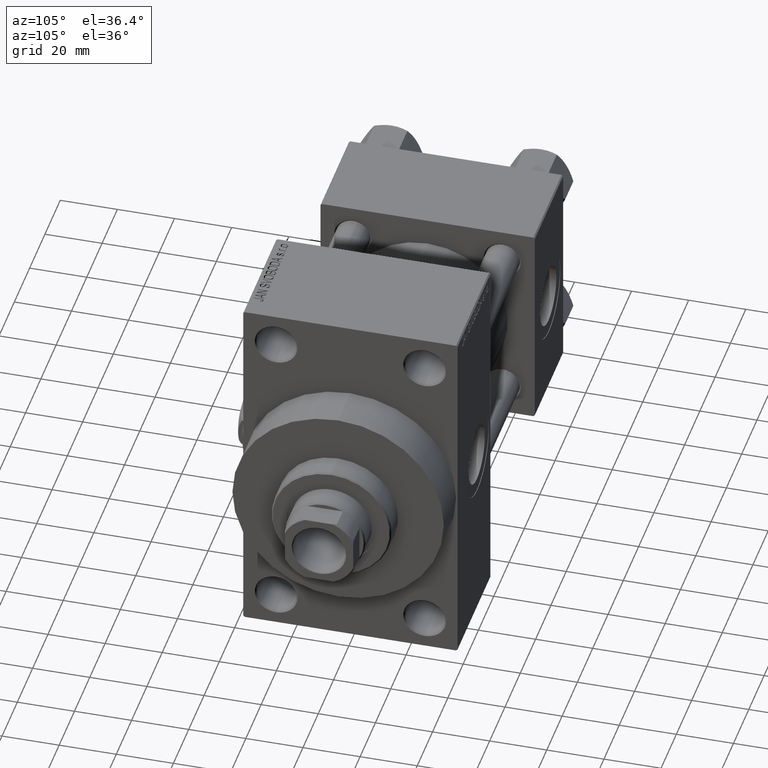
[diagram: clean part render]
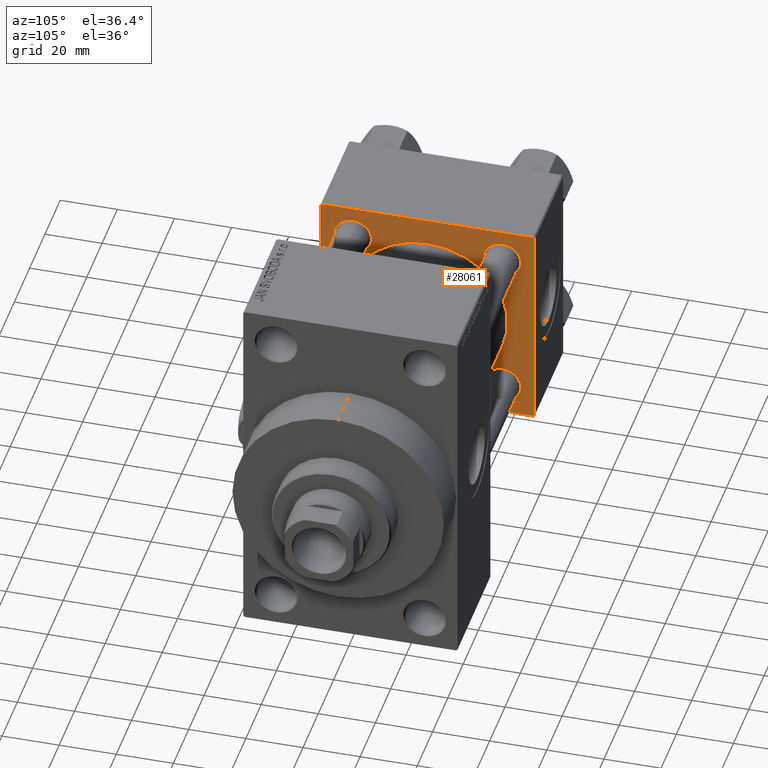
[diagram: same view with one face highlighted and labeled with its STEP entity id]
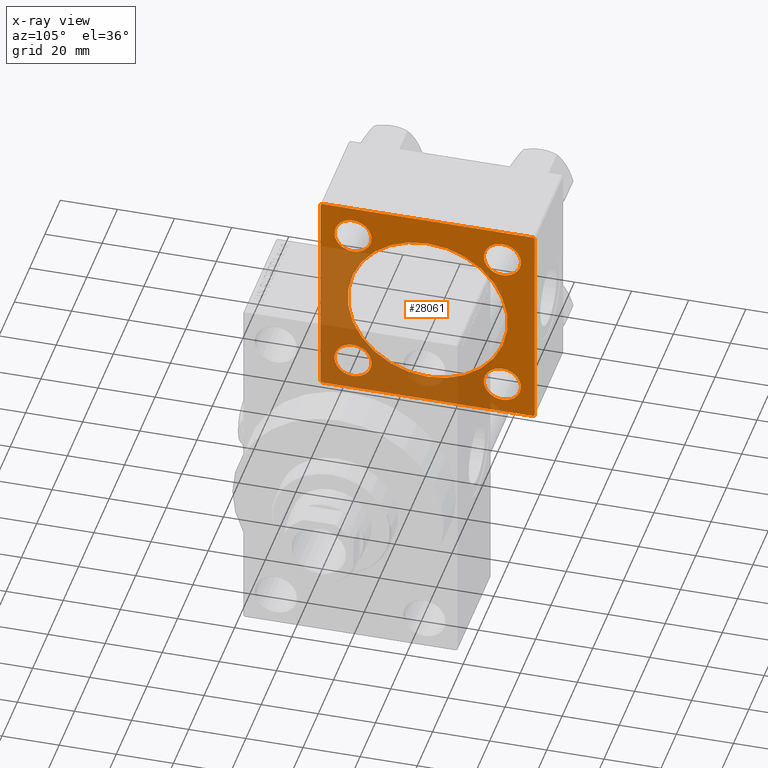
[diagram: x-ray of the same camera — body ghosted, the highlighted face saturated]
A machine part, auxiliary view. The second image highlights one B-rep face of the part: STEP entity #28061.
The next image is the same camera in x-ray: the body ghosted, the highlighted face saturated — about 45% of this face is hidden behind the body in this view.
In plain terms, the highlighted planar face has unit normal (-1, 0, 0).
Its self-contained STEP definition (entity closure, byte-faithful):
#106 = CIRCLE ( 'NONE', #26166, 6.500000000000057732 ) ;
#618 = EDGE_CURVE ( 'NONE', #43766, #48010, #35289, .T. ) ;
#924 = VERTEX_POINT ( 'NONE', #30983 ) ;
#1386 = LINE ( 'NONE', #29055, #27198 ) ;
#1470 = CIRCLE ( 'NONE', #19647, 6.500000000000002665 ) ;
#1662 = CARTESIAN_POINT ( 'NONE',  ( 37.00000000000000000, 26.14999999999999858, 32.65000000000001279 ) ) ;
#1811 = CARTESIAN_POINT ( 'NONE',  ( 37.00000000000000000, 26.14999999999999858, 26.15000000000000213 ) ) ;
#1832 = EDGE_CURVE ( 'NONE', #8495, #31881, #36807, .T. ) ;
#1848 = CARTESIAN_POINT ( 'NONE',  ( 37.00000000000000000, 37.49999999999999289, -36.99999999999998579 ) ) ;
#2081 = CARTESIAN_POINT ( 'NONE',  ( 37.00000000000000000, -37.00000000000002132, -37.50000000000000711 ) ) ;
#2444 = AXIS2_PLACEMENT_3D ( 'NONE', #26447, #38340, #12077 ) ;
#2451 = CARTESIAN_POINT ( 'NONE',  ( 37.00000000000000000, 37.49999999999999289, 37.50000000000000000 ) ) ;
#2662 = EDGE_CURVE ( 'NONE', #12018, #924, #37719, .T. ) ;
#2708 = CARTESIAN_POINT ( 'NONE',  ( 37.00000000000000000, 36.99999999999999289, 37.50000000000000000 ) ) ;
#2746 = CARTESIAN_POINT ( 'NONE',  ( 37.00000000000000000, -26.14999999999999147, 26.15000000000000924 ) ) ;
#2801 = CARTESIAN_POINT ( 'NONE',  ( 37.00000000000000000, -26.14999999999999147, 26.15000000000000924 ) ) ;
#4160 = EDGE_CURVE ( 'NONE', #20701, #21538, #13231, .T. ) ;
#4385 = EDGE_CURVE ( 'NONE', #31881, #26565, #45617, .T. ) ;
#4530 = ORIENTED_EDGE ( 'NONE', *, *, #36973, .F. ) ;
#5412 = CARTESIAN_POINT ( 'NONE',  ( 37.00000000000000000, -2.602085213965210642E-15, 28.00000000000000000 ) ) ;
#6012 = DIRECTION ( 'NONE',  ( -1.000000000000000000, 0.000000000000000000, -0.000000000000000000 ) ) ;
#6902 = AXIS2_PLACEMENT_3D ( 'NONE', #35814, #8842, #27895 ) ;
#7548 = VERTEX_POINT ( 'NONE', #1848 ) ;
#8011 = EDGE_CURVE ( 'NONE', #26565, #9751, #9076, .T. ) ;
#8037 = LINE ( 'NONE', #15215, #9224 ) ;
#8379 = EDGE_LOOP ( 'NONE', ( #24756, #46745 ) ) ;
#8495 = VERTEX_POINT ( 'NONE', #36978 ) ;
#8842 = DIRECTION ( 'NONE',  ( -1.000000000000000000, 0.000000000000000000, -0.000000000000000000 ) ) ;
#9076 = LINE ( 'NONE', #35088, #14986 ) ;
#9224 = VECTOR ( 'NONE', #38251, 1000.000000000000000 ) ;
#9465 = ORIENTED_EDGE ( 'NONE', *, *, #4160, .T. ) ;
#9481 = AXIS2_PLACEMENT_3D ( 'NONE', #18166, #29534, #25582 ) ;
#9529 = CARTESIAN_POINT ( 'NONE',  ( 37.00000000000000000, 26.14999999999999858, 19.64999999999999858 ) ) ;
#9751 = VERTEX_POINT ( 'NONE', #2081 ) ;
#10856 = CARTESIAN_POINT ( 'NONE',  ( 37.00000000000000000, -26.14999999999999147, -26.15000000000000924 ) ) ;
#11484 = VECTOR ( 'NONE', #32621, 1000.000000000000000 ) ;
#11714 = CARTESIAN_POINT ( 'NONE',  ( 37.00000000000000000, -2.602085213965210642E-15, 0.000000000000000000 ) ) ;
#11931 = CARTESIAN_POINT ( 'NONE',  ( 37.00000000000000000, -37.50000000000000711, 37.49999999999999289 ) ) ;
#12018 = VERTEX_POINT ( 'NONE', #41005 ) ;
#12023 = EDGE_LOOP ( 'NONE', ( #39539, #27697 ) ) ;
#12034 = ORIENTED_EDGE ( 'NONE', *, *, #31234, .F. ) ;
#12077 = DIRECTION ( 'NONE',  ( 0.000000000000000000, 0.000000000000000000, 1.000000000000000000 ) ) ;
#12292 = FACE_BOUND ( 'NONE', #8379, .T. ) ;
#13231 = CIRCLE ( 'NONE', #33004, 6.500000000000002665 ) ;
#13292 = EDGE_LOOP ( 'NONE', ( #45580, #16540, #31441, #29646, #32687, #30102, #32281, #37535 ) ) ;
#13301 = DIRECTION ( 'NONE',  ( 0.000000000000000000, 0.000000000000000000, 1.000000000000000000 ) ) ;
#13463 = CIRCLE ( 'NONE', #2444, 6.500000000000002665 ) ;
#13671 = DIRECTION ( 'NONE',  ( 0.000000000000000000, 0.000000000000000000, 1.000000000000000000 ) ) ;
#13907 = AXIS2_PLACEMENT_3D ( 'NONE', #2801, #6012, #13671 ) ;
#14107 = DIRECTION ( 'NONE',  ( 0.000000000000000000, 0.000000000000000000, 1.000000000000000000 ) ) ;
#14955 = DIRECTION ( 'NONE',  ( 0.000000000000000000, 0.000000000000000000, 1.000000000000000000 ) ) ;
#14986 = VECTOR ( 'NONE', #20232, 1000.000000000000000 ) ;
#15002 = CIRCLE ( 'NONE', #9481, 6.500000000000002665 ) ;
#15080 = EDGE_LOOP ( 'NONE', ( #12034, #4530 ) ) ;
#15215 = CARTESIAN_POINT ( 'NONE',  ( 37.00000000000000000, 37.49999999999999289, -37.50000000000000000 ) ) ;
#16252 = CARTESIAN_POINT ( 'NONE',  ( 37.00000000000000000, -37.50000000000000000, -37.00000000000003553 ) ) ;
#16540 = ORIENTED_EDGE ( 'NONE', *, *, #29475, .T. ) ;
#17134 = CARTESIAN_POINT ( 'NONE',  ( 37.00000000000000000, 37.49999999999999289, -36.99999999999998579 ) ) ;
#17383 = EDGE_CURVE ( 'NONE', #28530, #8495, #1386, .T. ) ;
#17834 = DIRECTION ( 'NONE',  ( -1.000000000000000000, 0.000000000000000000, -0.000000000000000000 ) ) ;
#18166 = CARTESIAN_POINT ( 'NONE',  ( 37.00000000000000000, 26.14999999999999858, -26.15000000000000213 ) ) ;
#19647 = AXIS2_PLACEMENT_3D ( 'NONE', #20302, #27725, #27953 ) ;
#20212 = CARTESIAN_POINT ( 'NONE',  ( 37.00000000000000000, 36.99999999999997868, -37.50000000000000000 ) ) ;
#20232 = DIRECTION ( 'NONE',  ( 0.000000000000000000, 0.7071067811865524577, -0.7071067811865426878 ) ) ;
#20299 = EDGE_CURVE ( 'NONE', #40833, #7548, #21729, .T. ) ;
#20302 = CARTESIAN_POINT ( 'NONE',  ( 37.00000000000000000, 26.14999999999999858, -26.15000000000000213 ) ) ;
#20701 = VERTEX_POINT ( 'NONE', #1662 ) ;
#21527 = VERTEX_POINT ( 'NONE', #47170 ) ;
#21538 = VERTEX_POINT ( 'NONE', #9529 ) ;
#21729 = LINE ( 'NONE', #2451, #11484 ) ;
#21953 = VECTOR ( 'NONE', #23568, 1000.000000000000000 ) ;
#23568 = DIRECTION ( 'NONE',  ( 0.000000000000000000, 9.251858538542971581E-17, -1.000000000000000000 ) ) ;
#24178 = FACE_BOUND ( 'NONE', #12023, .T. ) ;
#24321 = LINE ( 'NONE', #17134, #44871 ) ;
#24756 = ORIENTED_EDGE ( 'NONE', *, *, #27881, .T. ) ;
#24794 = DIRECTION ( 'NONE',  ( 0.000000000000000000, 0.000000000000000000, 1.000000000000000000 ) ) ;
#24873 = DIRECTION ( 'NONE',  ( -1.000000000000000000, 0.000000000000000000, -0.000000000000000000 ) ) ;
#25356 = CIRCLE ( 'NONE', #48345, 28.00000000000000000 ) ;
#25478 = DIRECTION ( 'NONE',  ( 0.000000000000000000, 0.000000000000000000, 1.000000000000000000 ) ) ;
#25582 = DIRECTION ( 'NONE',  ( 0.000000000000000000, 0.000000000000000000, 1.000000000000000000 ) ) ;
#25899 = CARTESIAN_POINT ( 'NONE',  ( 37.00000000000000000, -37.50000000000000711, 36.99999999999999289 ) ) ;
#26166 = AXIS2_PLACEMENT_3D ( 'NONE', #46458, #24873, #42739 ) ;
#26182 = CARTESIAN_POINT ( 'NONE',  ( 37.00000000000000000, 37.49999999999999289, 37.00000000000000000 ) ) ;
#26196 = EDGE_LOOP ( 'NONE', ( #30405, #40403 ) ) ;
#26447 = CARTESIAN_POINT ( 'NONE',  ( 37.00000000000000000, 26.14999999999999858, 26.15000000000000213 ) ) ;
#26565 = VERTEX_POINT ( 'NONE', #16252 ) ;
#26764 = AXIS2_PLACEMENT_3D ( 'NONE', #28898, #40305, #13301 ) ;
#26772 = ORIENTED_EDGE ( 'NONE', *, *, #35525, .T. ) ;
#26826 = DIRECTION ( 'NONE',  ( 1.000000000000000000, -0.000000000000000000, 0.000000000000000000 ) ) ;
#27198 = VECTOR ( 'NONE', #28571, 1000.000000000000000 ) ;
#27697 = ORIENTED_EDGE ( 'NONE', *, *, #31889, .T. ) ;
#27725 = DIRECTION ( 'NONE',  ( -1.000000000000000000, 0.000000000000000000, -0.000000000000000000 ) ) ;
#27881 = EDGE_CURVE ( 'NONE', #33516, #21527, #1470, .T. ) ;
#27895 = DIRECTION ( 'NONE',  ( -0.000000000000000000, 0.000000000000000000, 1.000000000000000000 ) ) ;
#27953 = DIRECTION ( 'NONE',  ( 0.000000000000000000, 0.000000000000000000, 1.000000000000000000 ) ) ;
#28061 = ADVANCED_FACE ( 'NONE', ( #46744, #12292, #24178, #31856, #32089, #35582 ), #39538, .F. ) ;
#28507 = DIRECTION ( 'NONE',  ( -1.000000000000000000, 0.000000000000000000, -0.000000000000000000 ) ) ;
#28530 = VERTEX_POINT ( 'NONE', #37651 ) ;
#28571 = DIRECTION ( 'NONE',  ( 0.000000000000000000, -1.000000000000000000, -9.251858538542971581E-17 ) ) ;
#28874 = DIRECTION ( 'NONE',  ( -0.000000000000000000, -0.7071067811865474617, -0.7071067811865474617 ) ) ;
#28898 = CARTESIAN_POINT ( 'NONE',  ( 37.00000000000000000, -2.602085213965210642E-15, 0.000000000000000000 ) ) ;
#29055 = CARTESIAN_POINT ( 'NONE',  ( 37.00000000000000000, 37.49999999999999289, 37.50000000000000000 ) ) ;
#29475 = EDGE_CURVE ( 'NONE', #31388, #7548, #24321, .T. ) ;
#29534 = DIRECTION ( 'NONE',  ( -1.000000000000000000, 0.000000000000000000, -0.000000000000000000 ) ) ;
#29646 = ORIENTED_EDGE ( 'NONE', *, *, #33337, .T. ) ;
#30102 = ORIENTED_EDGE ( 'NONE', *, *, #1832, .T. ) ;
#30405 = ORIENTED_EDGE ( 'NONE', *, *, #36797, .T. ) ;
#30593 = AXIS2_PLACEMENT_3D ( 'NONE', #10856, #45289, #25478 ) ;
#30983 = CARTESIAN_POINT ( 'NONE',  ( 37.00000000000000000, -26.14999999999999147, -32.65000000000006963 ) ) ;
#31234 = EDGE_CURVE ( 'NONE', #40035, #38691, #48128, .T. ) ;
#31388 = VERTEX_POINT ( 'NONE', #20212 ) ;
#31441 = ORIENTED_EDGE ( 'NONE', *, *, #20299, .F. ) ;
#31856 = FACE_BOUND ( 'NONE', #45769, .T. ) ;
#31881 = VERTEX_POINT ( 'NONE', #48047 ) ;
#31889 = EDGE_CURVE ( 'NONE', #48010, #43766, #45022, .T. ) ;
#32089 = FACE_BOUND ( 'NONE', #15080, .T. ) ;
#32160 = VECTOR ( 'NONE', #28874, 1000.000000000000114 ) ;
#32237 = DIRECTION ( 'NONE',  ( -0.000000000000000000, 0.7071067811865474617, 0.7071067811865474617 ) ) ;
#32281 = ORIENTED_EDGE ( 'NONE', *, *, #4385, .T. ) ;
#32621 = DIRECTION ( 'NONE',  ( 0.000000000000000000, 0.000000000000000000, -1.000000000000000000 ) ) ;
#32687 = ORIENTED_EDGE ( 'NONE', *, *, #17383, .T. ) ;
#32879 = LINE ( 'NONE', #2708, #38728 ) ;
#33004 = AXIS2_PLACEMENT_3D ( 'NONE', #1811, #28507, #24794 ) ;
#33337 = EDGE_CURVE ( 'NONE', #40833, #28530, #32879, .T. ) ;
#33516 = VERTEX_POINT ( 'NONE', #44715 ) ;
#33958 = EDGE_CURVE ( 'NONE', #21527, #33516, #15002, .T. ) ;
#35088 = CARTESIAN_POINT ( 'NONE',  ( 37.00000000000000000, -37.00000000000002132, -37.50000000000000711 ) ) ;
#35289 = CIRCLE ( 'NONE', #13907, 6.500000000000064837 ) ;
#35525 = EDGE_CURVE ( 'NONE', #21538, #20701, #13463, .T. ) ;
#35582 = FACE_OUTER_BOUND ( 'NONE', #13292, .T. ) ;
#35814 = CARTESIAN_POINT ( 'NONE',  ( 37.00000000000000000, 0.000000000000000000, 0.000000000000000000 ) ) ;
#36797 = EDGE_CURVE ( 'NONE', #924, #12018, #106, .T. ) ;
#36807 = LINE ( 'NONE', #25899, #32160 ) ;
#36973 = EDGE_CURVE ( 'NONE', #38691, #40035, #25356, .T. ) ;
#36978 = CARTESIAN_POINT ( 'NONE',  ( 37.00000000000000000, -37.00000000000000711, 37.49999999999999289 ) ) ;
#37535 = ORIENTED_EDGE ( 'NONE', *, *, #8011, .T. ) ;
#37651 = CARTESIAN_POINT ( 'NONE',  ( 37.00000000000000000, 36.99999999999999289, 37.50000000000000000 ) ) ;
#37719 = CIRCLE ( 'NONE', #30593, 6.500000000000057732 ) ;
#38251 = DIRECTION ( 'NONE',  ( 0.000000000000000000, -1.000000000000000000, -9.251858538542972814E-17 ) ) ;
#38340 = DIRECTION ( 'NONE',  ( -1.000000000000000000, 0.000000000000000000, -0.000000000000000000 ) ) ;
#38691 = VERTEX_POINT ( 'NONE', #43872 ) ;
#38728 = VECTOR ( 'NONE', #39835, 1000.000000000000114 ) ;
#39538 = PLANE ( 'NONE',  #6902 ) ;
#39539 = ORIENTED_EDGE ( 'NONE', *, *, #618, .T. ) ;
#39835 = DIRECTION ( 'NONE',  ( 0.000000000000000000, -0.7071067811865474617, 0.7071067811865474617 ) ) ;
#40035 = VERTEX_POINT ( 'NONE', #5412 ) ;
#40305 = DIRECTION ( 'NONE',  ( 1.000000000000000000, -0.000000000000000000, 0.000000000000000000 ) ) ;
#40321 = CARTESIAN_POINT ( 'NONE',  ( 37.00000000000000000, -26.14999999999999147, 19.64999999999994529 ) ) ;
#40403 = ORIENTED_EDGE ( 'NONE', *, *, #2662, .T. ) ;
#40833 = VERTEX_POINT ( 'NONE', #26182 ) ;
#41005 = CARTESIAN_POINT ( 'NONE',  ( 37.00000000000000000, -26.14999999999999147, -19.64999999999995239 ) ) ;
#41852 = CARTESIAN_POINT ( 'NONE',  ( 37.00000000000000000, -26.14999999999999147, 32.65000000000007674 ) ) ;
#42739 = DIRECTION ( 'NONE',  ( 0.000000000000000000, 0.000000000000000000, 1.000000000000000000 ) ) ;
#43766 = VERTEX_POINT ( 'NONE', #40321 ) ;
#43872 = CARTESIAN_POINT ( 'NONE',  ( 37.00000000000000000, 8.269258236473776482E-16, -28.00000000000000000 ) ) ;
#44126 = EDGE_CURVE ( 'NONE', #31388, #9751, #8037, .T. ) ;
#44715 = CARTESIAN_POINT ( 'NONE',  ( 37.00000000000000000, 26.14999999999999858, -32.65000000000000568 ) ) ;
#44871 = VECTOR ( 'NONE', #32237, 1000.000000000000114 ) ;
#45022 = CIRCLE ( 'NONE', #46598, 6.500000000000064837 ) ;
#45289 = DIRECTION ( 'NONE',  ( -1.000000000000000000, 0.000000000000000000, -0.000000000000000000 ) ) ;
#45580 = ORIENTED_EDGE ( 'NONE', *, *, #44126, .F. ) ;
#45617 = LINE ( 'NONE', #11931, #21953 ) ;
#45769 = EDGE_LOOP ( 'NONE', ( #26772, #9465 ) ) ;
#46458 = CARTESIAN_POINT ( 'NONE',  ( 37.00000000000000000, -26.14999999999999147, -26.15000000000000924 ) ) ;
#46598 = AXIS2_PLACEMENT_3D ( 'NONE', #2746, #17834, #14107 ) ;
#46744 = FACE_BOUND ( 'NONE', #26196, .T. ) ;
#46745 = ORIENTED_EDGE ( 'NONE', *, *, #33958, .T. ) ;
#47170 = CARTESIAN_POINT ( 'NONE',  ( 37.00000000000000000, 26.14999999999999858, -19.65000000000000213 ) ) ;
#48010 = VERTEX_POINT ( 'NONE', #41852 ) ;
#48047 = CARTESIAN_POINT ( 'NONE',  ( 37.00000000000000000, -37.50000000000000711, 36.99999999999999289 ) ) ;
#48128 = CIRCLE ( 'NONE', #26764, 28.00000000000000000 ) ;
#48345 = AXIS2_PLACEMENT_3D ( 'NONE', #11714, #26826, #14955 ) ;